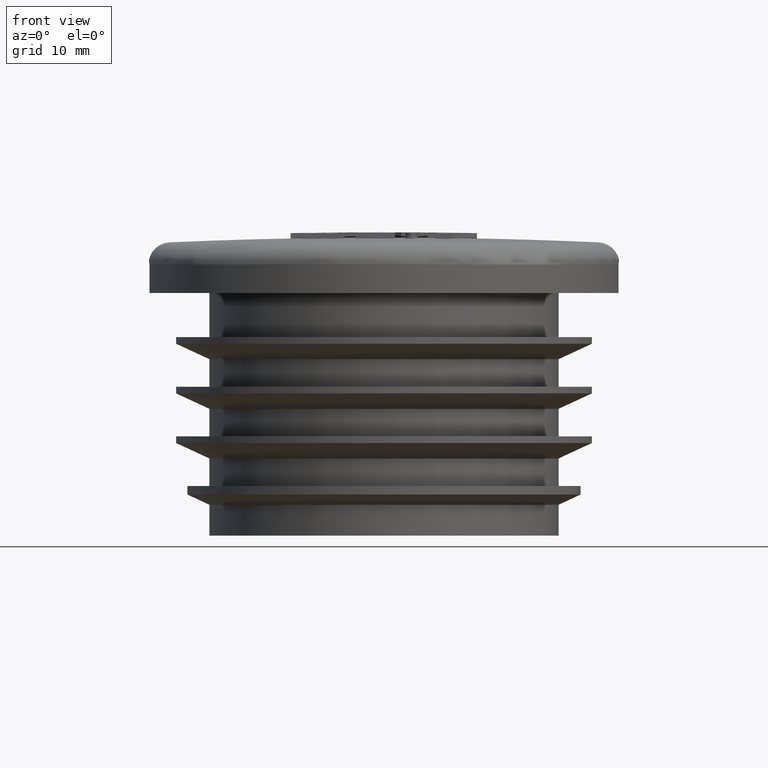
[diagram: clean part render]
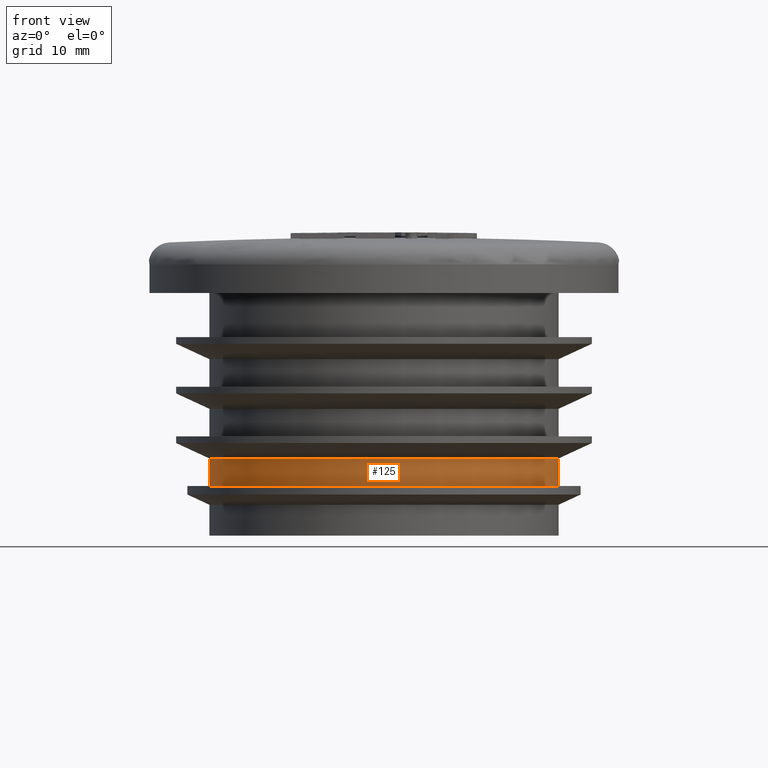
[diagram: same view with one face highlighted and labeled with its STEP entity id]
A machine part, front view. The second image highlights one B-rep face of the part: STEP entity #125.
In plain terms, the highlighted cylindrical surface (bore or boss wall) has radius 15.85 mm, axis along (0, 0, 1).
Its self-contained STEP definition (entity closure, byte-faithful):
#125 = ADVANCED_FACE( '', ( #294, #295 ), #296, .T. );
#294 = FACE_OUTER_BOUND( '', #682, .T. );
#295 = FACE_OUTER_BOUND( '', #683, .T. );
#296 = CYLINDRICAL_SURFACE( '', #684, 15.8500000000000 );
#682 = EDGE_LOOP( '', ( #1263 ) );
#683 = EDGE_LOOP( '', ( #1264 ) );
#684 = AXIS2_PLACEMENT_3D( '', #1265, #1266, #1267 );
#1263 = ORIENTED_EDGE( '', *, *, #1659, .F. );
#1264 = ORIENTED_EDGE( '', *, *, #1658, .T. );
#1265 = CARTESIAN_POINT( '', ( 0.000000000000000, 0.000000000000000, 22.0000000000000 ) );
#1266 = DIRECTION( '', ( 0.000000000000000, 6.12303176911189E-017, 1.00000000000000 ) );
#1267 = DIRECTION( '', ( 0.000000000000000, 1.00000000000000, -6.12303176911189E-017 ) );
#1658 = EDGE_CURVE( '', #1953, #1953, #1954, .T. );
#1659 = EDGE_CURVE( '', #1955, #1955, #1956, .T. );
#1953 = VERTEX_POINT( '', #2943 );
#1954 = CIRCLE( '', #2944, 15.8500000000000 );
#1955 = VERTEX_POINT( '', #2945 );
#1956 = CIRCLE( '', #2946, 15.8500000000000 );
#2943 = CARTESIAN_POINT( '', ( 0.000000000000000, 15.8500000000000, 6.99999999999999 ) );
#2944 = AXIS2_PLACEMENT_3D( '', #3243, #3244, #3245 );
#2945 = CARTESIAN_POINT( '', ( 0.000000000000000, 15.8500000000000, 4.49999999999999 ) );
#2946 = AXIS2_PLACEMENT_3D( '', #3246, #3247, #3248 );
#3243 = CARTESIAN_POINT( '', ( 0.000000000000000, -9.18454765366784E-016, 6.99999999999999 ) );
#3244 = DIRECTION( '', ( 0.000000000000000, -6.12303176911189E-017, -1.00000000000000 ) );
#3245 = DIRECTION( '', ( 0.000000000000000, 1.00000000000000, -6.12303176911189E-017 ) );
#3246 = CARTESIAN_POINT( '', ( 0.000000000000000, -1.07153055959458E-015, 4.49999999999999 ) );
#3247 = DIRECTION( '', ( 0.000000000000000, -6.12303176911189E-017, -1.00000000000000 ) );
#3248 = DIRECTION( '', ( 0.000000000000000, 1.00000000000000, -6.12303176911189E-017 ) );